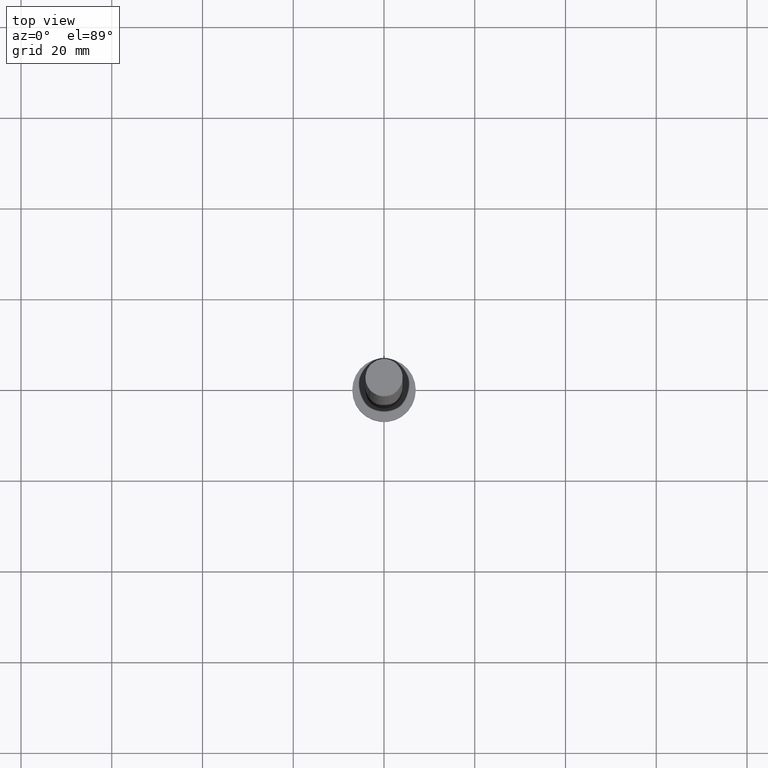
[diagram: clean part render]
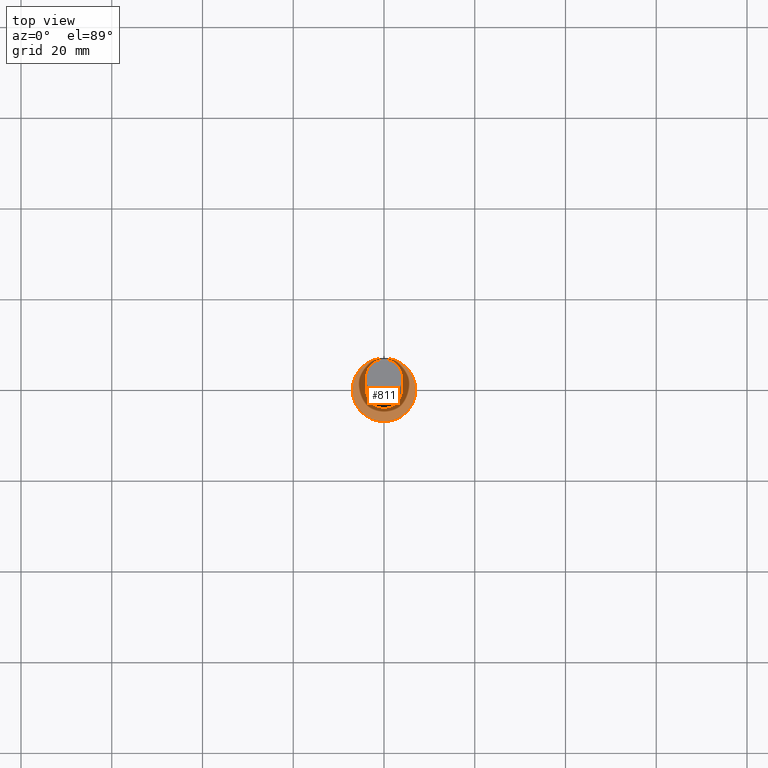
[diagram: same view with one face highlighted and labeled with its STEP entity id]
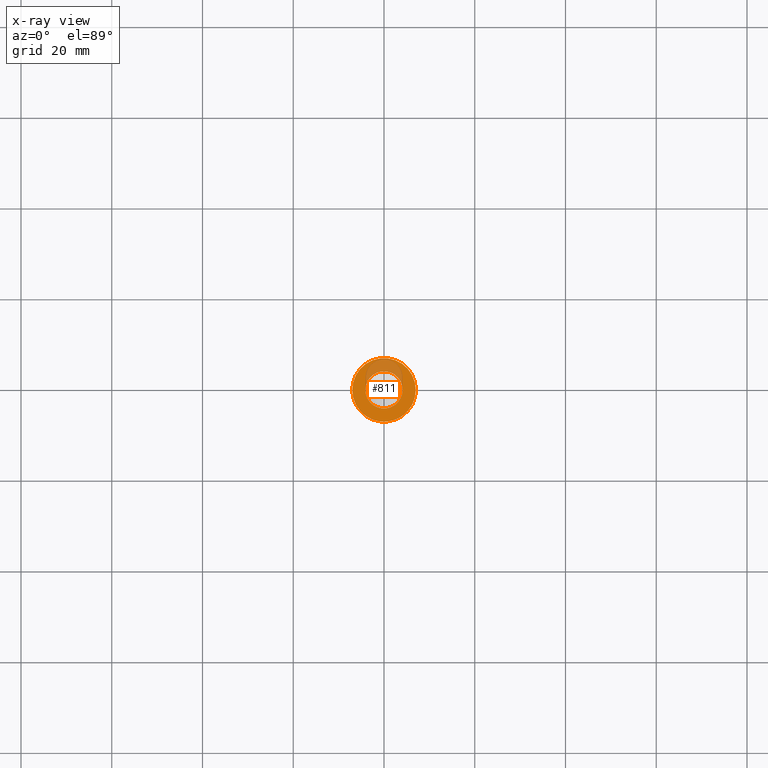
[diagram: x-ray of the same camera — body ghosted, the highlighted face saturated]
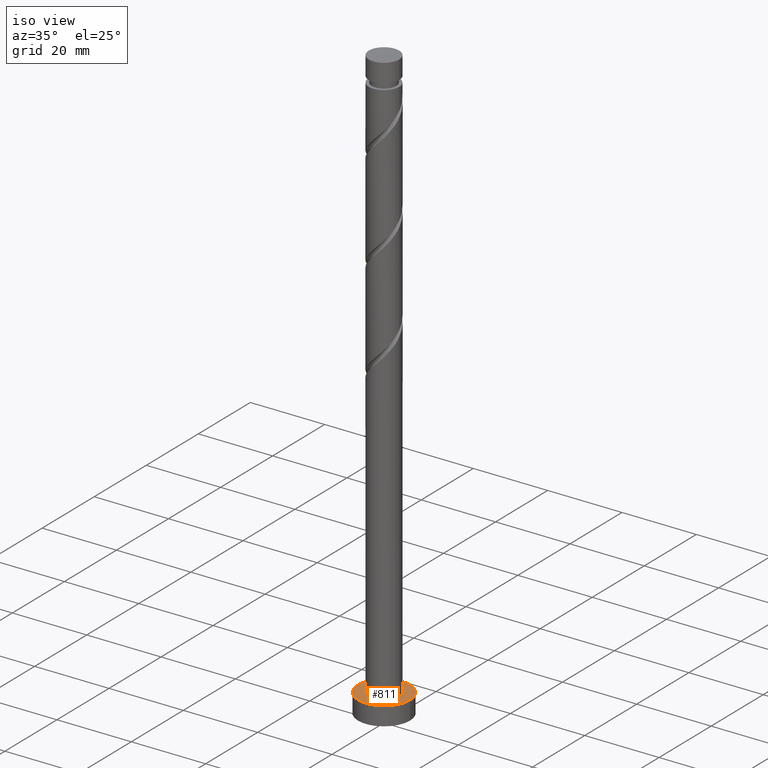
[diagram: same view with one face highlighted and labeled with its STEP entity id]
A machine part, top view. The second image highlights one B-rep face of the part: STEP entity #811.
The next image is the same camera in x-ray: the body ghosted, the highlighted face saturated — about 22% of this face is hidden behind the body in this view.
A second angle (iso view) of the same face is appended — the face is thin or edge-on in the first view.
In plain terms, the highlighted planar face has unit normal (0, 0, 1).
Its self-contained STEP definition (entity closure, byte-faithful):
#3 = VERTEX_POINT ( 'NONE', #1326 ) ;
#28 = ORIENTED_EDGE ( 'NONE', *, *, #1279, .T. ) ;
#117 = EDGE_CURVE ( 'NONE', #269, #1351, #1510, .T. ) ;
#245 = CARTESIAN_POINT ( 'NONE',  ( -4.099999999999999645, 0.000000000000000000, 5.000000000000000000 ) ) ;
#264 = DIRECTION ( 'NONE',  ( 0.000000000000000000, 0.000000000000000000, 1.000000000000000000 ) ) ;
#269 = VERTEX_POINT ( 'NONE', #245 ) ;
#297 = CARTESIAN_POINT ( 'NONE',  ( 0.000000000000000000, 0.000000000000000000, 5.000000000000000000 ) ) ;
#353 = DIRECTION ( 'NONE',  ( 0.000000000000000000, 0.000000000000000000, 1.000000000000000000 ) ) ;
#362 = DIRECTION ( 'NONE',  ( 0.000000000000000000, 0.000000000000000000, 1.000000000000000000 ) ) ;
#364 = FACE_BOUND ( 'NONE', #1259, .T. ) ;
#386 = CARTESIAN_POINT ( 'NONE',  ( 0.000000000000000000, 0.000000000000000000, 5.000000000000000000 ) ) ;
#395 = CARTESIAN_POINT ( 'NONE',  ( 7.000000000000000000, 8.572527594031473190E-16, 5.000000000000000000 ) ) ;
#437 = EDGE_CURVE ( 'NONE', #1351, #269, #1170, .T. ) ;
#454 = AXIS2_PLACEMENT_3D ( 'NONE', #297, #1207, #671 ) ;
#483 = AXIS2_PLACEMENT_3D ( 'NONE', #386, #362, #1242 ) ;
#521 = DIRECTION ( 'NONE',  ( 1.000000000000000000, 0.000000000000000000, 0.000000000000000000 ) ) ;
#560 = AXIS2_PLACEMENT_3D ( 'NONE', #1636, #1660, #521 ) ;
#612 = AXIS2_PLACEMENT_3D ( 'NONE', #1382, #264, #638 ) ;
#620 = FACE_OUTER_BOUND ( 'NONE', #1057, .T. ) ;
#634 = VERTEX_POINT ( 'NONE', #395 ) ;
#638 = DIRECTION ( 'NONE',  ( 1.000000000000000000, 0.000000000000000000, -0.000000000000000000 ) ) ;
#671 = DIRECTION ( 'NONE',  ( 1.000000000000000000, 0.000000000000000000, 0.000000000000000000 ) ) ;
#770 = CIRCLE ( 'NONE', #560, 7.000000000000000000 ) ;
#781 = ORIENTED_EDGE ( 'NONE', *, *, #1298, .T. ) ;
#782 = ORIENTED_EDGE ( 'NONE', *, *, #117, .F. ) ;
#811 = ADVANCED_FACE ( 'NONE', ( #364, #620 ), #871, .T. ) ;
#871 = PLANE ( 'NONE',  #612 ) ;
#891 = CARTESIAN_POINT ( 'NONE',  ( 4.099999999999999645, 5.021051876504147385E-16, 5.000000000000000000 ) ) ;
#998 = AXIS2_PLACEMENT_3D ( 'NONE', #1648, #353, #1361 ) ;
#1057 = EDGE_LOOP ( 'NONE', ( #781, #28 ) ) ;
#1170 = CIRCLE ( 'NONE', #454, 4.099999999999999645 ) ;
#1207 = DIRECTION ( 'NONE',  ( 0.000000000000000000, 0.000000000000000000, 1.000000000000000000 ) ) ;
#1242 = DIRECTION ( 'NONE',  ( 1.000000000000000000, 0.000000000000000000, 0.000000000000000000 ) ) ;
#1259 = EDGE_LOOP ( 'NONE', ( #782, #1585 ) ) ;
#1279 = EDGE_CURVE ( 'NONE', #634, #3, #770, .T. ) ;
#1298 = EDGE_CURVE ( 'NONE', #3, #634, #1360, .T. ) ;
#1326 = CARTESIAN_POINT ( 'NONE',  ( -7.000000000000000000, 0.000000000000000000, 5.000000000000000000 ) ) ;
#1351 = VERTEX_POINT ( 'NONE', #891 ) ;
#1360 = CIRCLE ( 'NONE', #483, 7.000000000000000000 ) ;
#1361 = DIRECTION ( 'NONE',  ( 1.000000000000000000, 0.000000000000000000, 0.000000000000000000 ) ) ;
#1382 = CARTESIAN_POINT ( 'NONE',  ( 0.000000000000000000, 0.000000000000000000, 5.000000000000000000 ) ) ;
#1510 = CIRCLE ( 'NONE', #998, 4.099999999999999645 ) ;
#1585 = ORIENTED_EDGE ( 'NONE', *, *, #437, .F. ) ;
#1636 = CARTESIAN_POINT ( 'NONE',  ( 0.000000000000000000, 0.000000000000000000, 5.000000000000000000 ) ) ;
#1648 = CARTESIAN_POINT ( 'NONE',  ( 0.000000000000000000, 0.000000000000000000, 5.000000000000000000 ) ) ;
#1660 = DIRECTION ( 'NONE',  ( 0.000000000000000000, 0.000000000000000000, 1.000000000000000000 ) ) ;